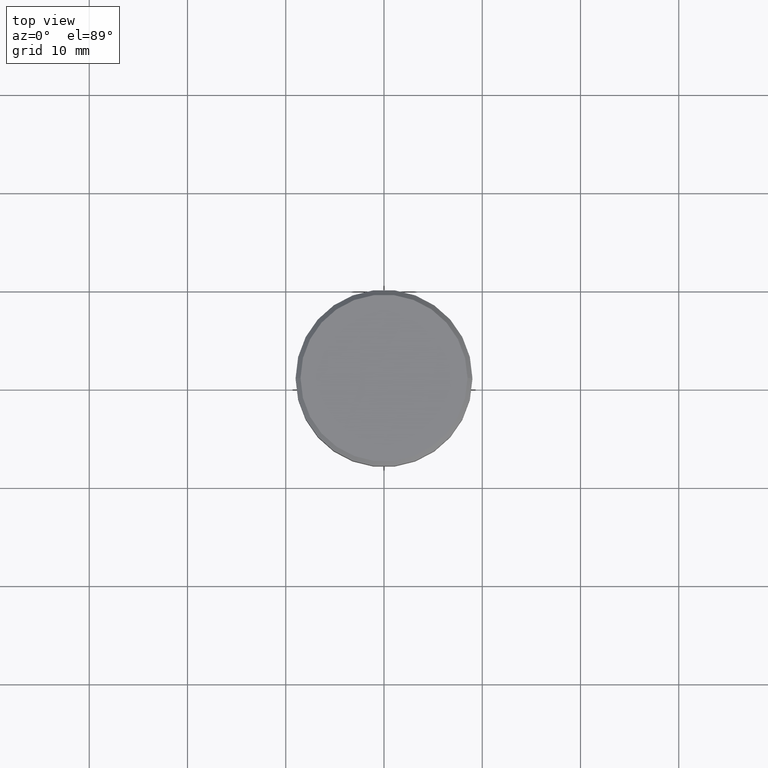
[diagram: clean part render]
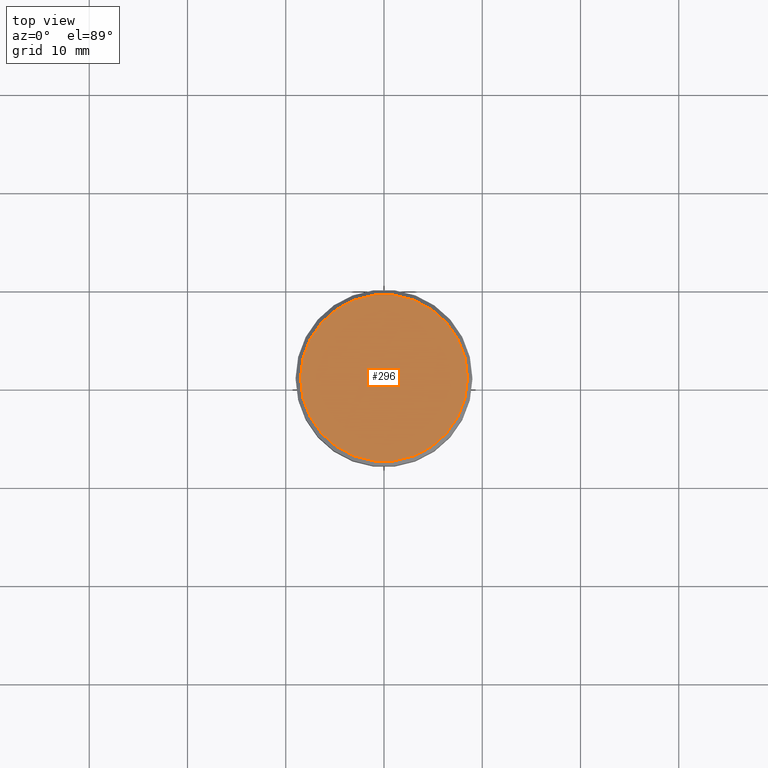
[diagram: same view with one face highlighted and labeled with its STEP entity id]
A machine part, top view. The second image highlights one B-rep face of the part: STEP entity #296.
In plain terms, the highlighted planar face has unit normal (0, -0, 1).
Its self-contained STEP definition (entity closure, byte-faithful):
#14 = FACE_OUTER_BOUND ( 'NONE', #371, .T. ) ;
#93 = CARTESIAN_POINT ( 'NONE',  ( 8.500000000000003553, 1.071565949253934321E-15, 0.000000000000000000 ) ) ;
#118 = ORIENTED_EDGE ( 'NONE', *, *, #216, .T. ) ;
#129 = CARTESIAN_POINT ( 'NONE',  ( 0.000000000000000000, 0.000000000000000000, 0.000000000000000000 ) ) ;
#142 = CIRCLE ( 'NONE', #438, 8.500000000000003553 ) ;
#179 = DIRECTION ( 'NONE',  ( -0.000000000000000000, -0.000000000000000000, 1.000000000000000000 ) ) ;
#193 = CIRCLE ( 'NONE', #393, 8.500000000000003553 ) ;
#199 = DIRECTION ( 'NONE',  ( 0.000000000000000000, -0.000000000000000000, 1.000000000000000000 ) ) ;
#216 = EDGE_CURVE ( 'NONE', #399, #301, #193, .T. ) ;
#280 = DIRECTION ( 'NONE',  ( -0.000000000000000000, -0.000000000000000000, 1.000000000000000000 ) ) ;
#296 = ADVANCED_FACE ( 'NONE', ( #14 ), #391, .T. ) ;
#301 = VERTEX_POINT ( 'NONE', #400 ) ;
#371 = EDGE_LOOP ( 'NONE', ( #599, #118 ) ) ;
#376 = DIRECTION ( 'NONE',  ( 1.000000000000000000, 0.000000000000000000, 0.000000000000000000 ) ) ;
#391 = PLANE ( 'NONE',  #506 ) ;
#393 = AXIS2_PLACEMENT_3D ( 'NONE', #129, #179, #376 ) ;
#399 = VERTEX_POINT ( 'NONE', #93 ) ;
#400 = CARTESIAN_POINT ( 'NONE',  ( -8.500000000000003553, 0.000000000000000000, 0.000000000000000000 ) ) ;
#427 = DIRECTION ( 'NONE',  ( 1.000000000000000000, 0.000000000000000000, 0.000000000000000000 ) ) ;
#428 = EDGE_CURVE ( 'NONE', #301, #399, #142, .T. ) ;
#438 = AXIS2_PLACEMENT_3D ( 'NONE', #510, #280, #427 ) ;
#441 = DIRECTION ( 'NONE',  ( 1.000000000000000000, 0.000000000000000000, 0.000000000000000000 ) ) ;
#481 = CARTESIAN_POINT ( 'NONE',  ( 0.000000000000000000, 0.000000000000000000, 0.000000000000000000 ) ) ;
#506 = AXIS2_PLACEMENT_3D ( 'NONE', #481, #199, #441 ) ;
#510 = CARTESIAN_POINT ( 'NONE',  ( 0.000000000000000000, 0.000000000000000000, 0.000000000000000000 ) ) ;
#599 = ORIENTED_EDGE ( 'NONE', *, *, #428, .T. ) ;